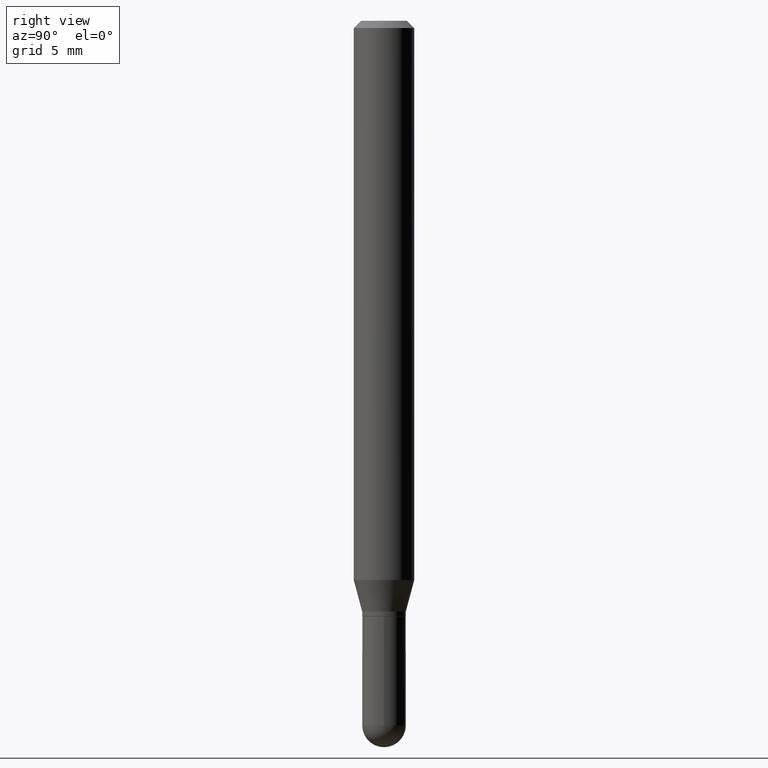
[diagram: clean part render]
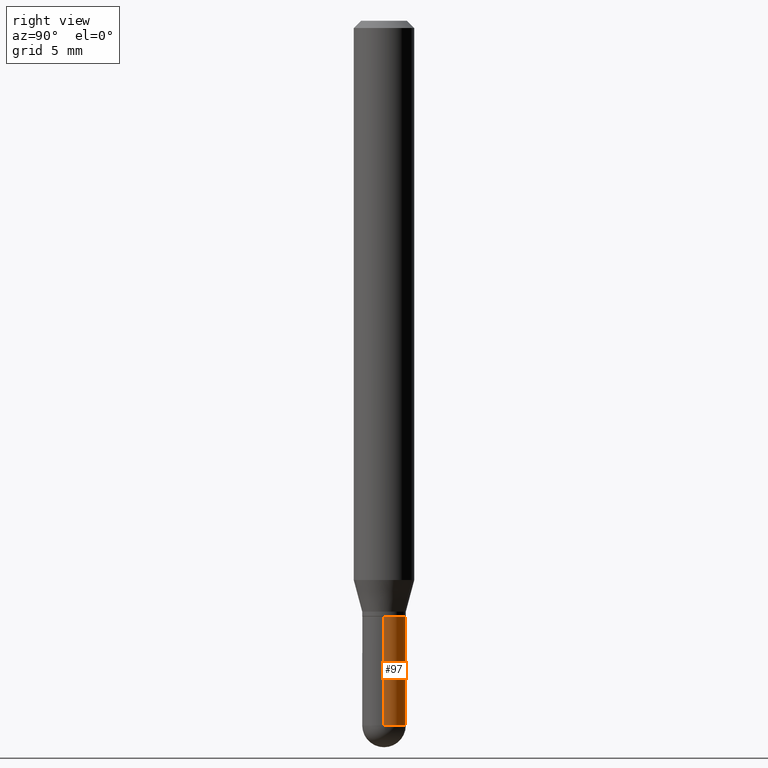
[diagram: same view with one face highlighted and labeled with its STEP entity id]
A machine part, right view. The second image highlights one B-rep face of the part: STEP entity #97.
In plain terms, the highlighted cylindrical surface (edge-blend (fillet) strip) has radius 1.143 mm, axis along (-0, 0, 1).
Its self-contained STEP definition (entity closure, byte-faithful):
#19 = AXIS2_PLACEMENT_3D ( 'NONE', #381, #22, #180 ) ;
#20 = VECTOR ( 'NONE', #90, 39.37007874015748143 ) ;
#22 = DIRECTION ( 'NONE',  ( -2.445468806185136597E-29, 3.491481338843145583E-15, 1.000000000000000000 ) ) ;
#27 = AXIS2_PLACEMENT_3D ( 'NONE', #500, #502, #139 ) ;
#29 = CIRCLE ( 'NONE', #19, 0.04500000000000001221 ) ;
#31 = EDGE_CURVE ( 'NONE', #161, #37, #164, .T. ) ;
#37 = VERTEX_POINT ( 'NONE', #324 ) ;
#42 = CARTESIAN_POINT ( 'NONE',  ( -0.04500000000000000527, 3.197442310920451211E-16, -2.213520790614707910E-30 ) ) ;
#65 = CARTESIAN_POINT ( 'NONE',  ( 0.000000000000000000, 0.000000000000000000, 0.000000000000000000 ) ) ;
#90 = DIRECTION ( 'NONE',  ( -2.445468806185136877E-29, 3.491481338843145188E-15, 1.000000000000000000 ) ) ;
#96 = DIRECTION ( 'NONE',  ( -2.445468806185136597E-29, 3.491481338843145583E-15, 1.000000000000000000 ) ) ;
#97 = ADVANCED_FACE ( 'NONE', ( #289 ), #331, .T. ) ;
#98 = DIRECTION ( 'NONE',  ( 1.000000000000000000, -6.982962677686267499E-15, 4.876176775795935793E-29 ) ) ;
#115 = EDGE_LOOP ( 'NONE', ( #312, #244, #390, #438, #319 ) ) ;
#134 = AXIS2_PLACEMENT_3D ( 'NONE', #65, #96, #98 ) ;
#138 = CARTESIAN_POINT ( 'NONE',  ( 0.04499999999999999833, -4.608755367272951648E-15, -1.230000000000000204 ) ) ;
#139 = DIRECTION ( 'NONE',  ( 1.000000000000000000, -6.982962677686269077E-15, 0.000000000000000000 ) ) ;
#144 = CARTESIAN_POINT ( 'NONE',  ( 0.04500000000000000527, -3.142333204958820809E-16, 2.194279549108171317E-30 ) ) ;
#147 = VERTEX_POINT ( 'NONE', #375 ) ;
#161 = VERTEX_POINT ( 'NONE', #411 ) ;
#164 = LINE ( 'NONE', #42, #20 ) ;
#180 = DIRECTION ( 'NONE',  ( 1.000000000000000000, -6.982962677686266711E-15, 0.000000000000000000 ) ) ;
#196 = VECTOR ( 'NONE', #223, 39.37007874015748143 ) ;
#215 = DIRECTION ( 'NONE',  ( 1.000000000000000000, -6.982962677686266711E-15, 0.000000000000000000 ) ) ;
#223 = DIRECTION ( 'NONE',  ( -2.445468806185136877E-29, 3.491481338843145188E-15, 1.000000000000000000 ) ) ;
#242 = EDGE_CURVE ( 'NONE', #479, #37, #283, .T. ) ;
#244 = ORIENTED_EDGE ( 'NONE', *, *, #31, .T. ) ;
#283 = CIRCLE ( 'NONE', #27, 0.04499999999999999833 ) ;
#289 = FACE_OUTER_BOUND ( 'NONE', #115, .T. ) ;
#312 = ORIENTED_EDGE ( 'NONE', *, *, #490, .T. ) ;
#319 = ORIENTED_EDGE ( 'NONE', *, *, #495, .T. ) ;
#324 = CARTESIAN_POINT ( 'NONE',  ( -0.04499999999999999833, -4.367569466304877886E-15, -1.230000000000000204 ) ) ;
#331 = CYLINDRICAL_SURFACE ( 'NONE', #134, 0.04500000000000000527 ) ;
#338 = CARTESIAN_POINT ( 'NONE',  ( 3.558157112999374623E-29, -5.080105348016777334E-15, -1.455000000000000293 ) ) ;
#375 = CARTESIAN_POINT ( 'NONE',  ( 3.197442310920811129E-16, 0.04499999999999498151, -1.455000000000000515 ) ) ;
#381 = CARTESIAN_POINT ( 'NONE',  ( 3.558157112999374623E-29, -5.080105348016777334E-15, -1.455000000000000293 ) ) ;
#389 = LINE ( 'NONE', #144, #196 ) ;
#390 = ORIENTED_EDGE ( 'NONE', *, *, #242, .F. ) ;
#395 = VERTEX_POINT ( 'NONE', #504 ) ;
#411 = CARTESIAN_POINT ( 'NONE',  ( -0.04500000000000001221, -4.367569466304877886E-15, -1.455000000000000293 ) ) ;
#438 = ORIENTED_EDGE ( 'NONE', *, *, #444, .F. ) ;
#443 = CIRCLE ( 'NONE', #498, 0.04500000000000001221 ) ;
#444 = EDGE_CURVE ( 'NONE', #395, #479, #389, .T. ) ;
#470 = DIRECTION ( 'NONE',  ( -2.445468806185136597E-29, 3.491481338843145583E-15, 1.000000000000000000 ) ) ;
#479 = VERTEX_POINT ( 'NONE', #138 ) ;
#490 = EDGE_CURVE ( 'NONE', #147, #161, #443, .T. ) ;
#495 = EDGE_CURVE ( 'NONE', #395, #147, #29, .T. ) ;
#498 = AXIS2_PLACEMENT_3D ( 'NONE', #338, #470, #215 ) ;
#500 = CARTESIAN_POINT ( 'NONE',  ( 3.007926631607718216E-29, -4.294522046777069173E-15, -1.230000000000000204 ) ) ;
#502 = DIRECTION ( 'NONE',  ( -2.445468806185136597E-29, 3.491481338843145583E-15, 1.000000000000000000 ) ) ;
#504 = CARTESIAN_POINT ( 'NONE',  ( 0.04500000000000001221, -5.001547017892805729E-15, -1.455000000000000293 ) ) ;